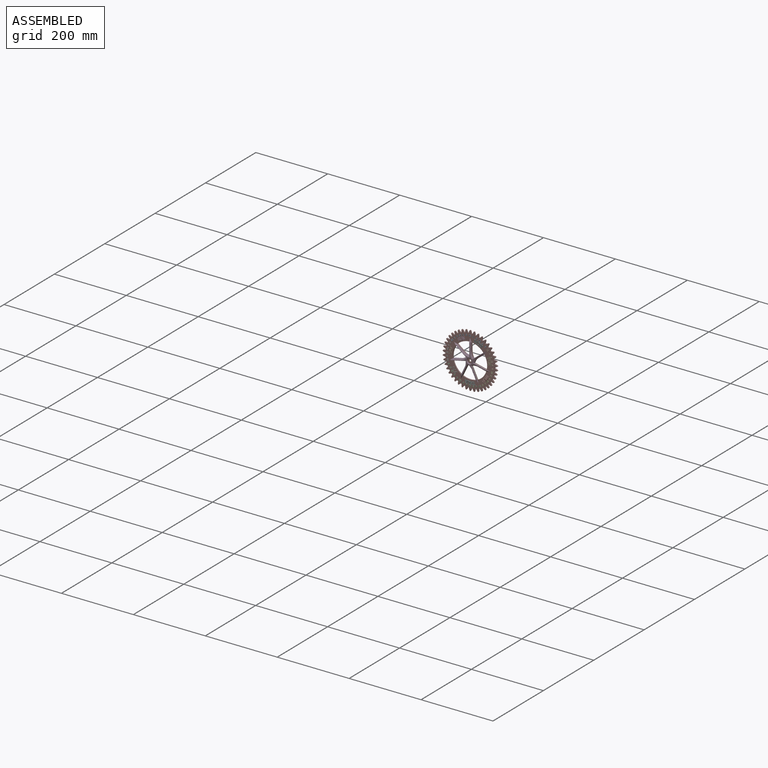
[diagram: assembled view]
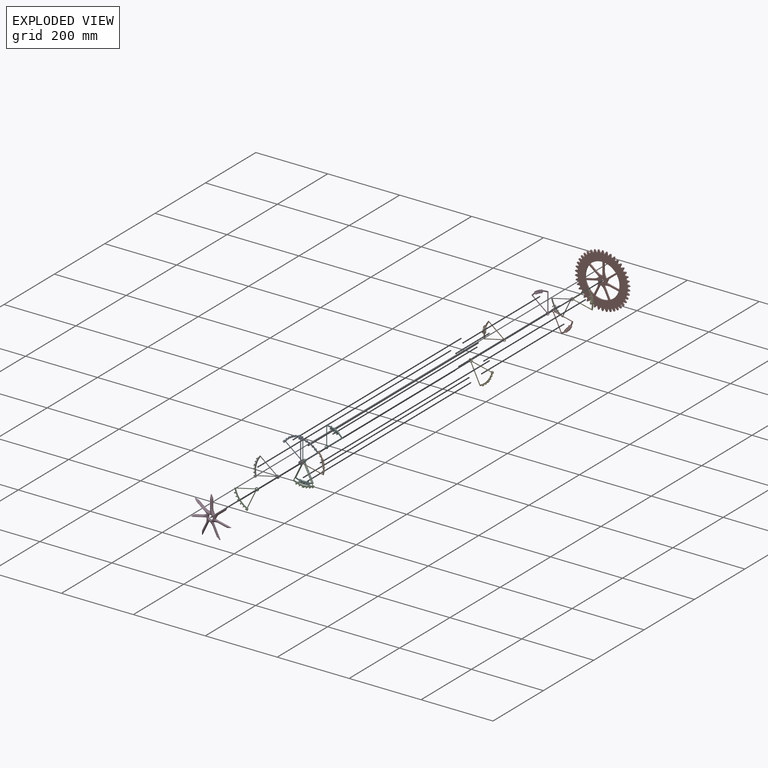
[diagram: exploded view]
GUIDED TOUR — MATED ASSEMBLY (Onshape document fc287e7eb0d89cf770b1b55a, AutoMate assembly fc287e7eb0d89cf770b1b55a_567d57d1a9eed2871b4e9d9c_314c2191165127549fa9cd8b_default)

This assembly has 16 components, labeled P0..P15 below (a component is one placed occurrence of a part; the same part can appear more than once), held together by 45 mates. A mate is a constraint between two components; its type names the relative motion it leaves free:
  CYLINDRICAL — leaves both rotation about and translation along the listed axis free,
  PLANAR — leaves sliding in the plane through the listed point (normal = the listed direction) and rotation about that normal free.
Axis/direction vectors are unit vectors and 'through' points are millimeter coordinates, both in the assembly's world frame.

MATES
  1. PLANAR "Planar 6": P8 <-> P15, direction (-0.623, 0.000, -0.782) through (-39.82, -40.15, 39.80) mm
  2. PLANAR "Planar 19": P7 <-> P15, direction (0.000, 1.000, 0.000) through (16.37, -39.35, -5.75) mm
  3. PLANAR "Planar 7": P4 <-> P15, direction (0.000, 1.000, 0.000) through (18.33, -39.35, -6.20) mm
  4. PLANAR "Planar 22": P5 <-> P15, direction (0.901, 0.000, 0.434) through (-1.00, -40.15, -8.11) mm
  5. PLANAR "Planar 1": P15 <-> P0, direction (0.000, 1.000, 0.000) through (-14.31, -39.35, 19.53) mm
  6. PLANAR "Planar 15": P13 <-> P15, direction (0.000, 1.000, 0.000) through (3.28, -39.35, 70.51) mm
  7. PLANAR "Planar 11": P2 <-> P15, direction (0.000, 1.000, 0.000) through (-46.60, -39.35, -6.62) mm
  8. PLANAR "Planar 25": P9 <-> P15, direction (0.000, 1.000, 0.000) through (-52.44, -39.35, 28.79) mm
  9. PLANAR "Planar 5": P8 <-> P15, direction (0.000, 1.000, 0.000) through (-32.58, -39.35, 56.78) mm
  10. CYLINDRICAL "Cylindrical 3": P8 <-> P15, axis (0.000, -1.000, 0.000) through (-14.31, -40.15, 19.48) mm
  11. CYLINDRICAL "Cylindrical 10": P7 <-> P15, axis (0.000, -1.000, 0.000) through (-14.31, -40.15, 19.48) mm
  12. PLANAR "Planar 28": P11 <-> P15, direction (-1.000, 0.000, 0.000) through (-14.31, -40.15, 48.48) mm
  13. PLANAR "Planar 29": P3 <-> P15, direction (0.000, 1.000, 0.000) through (-24.24, -39.35, 27.39) mm
  14. PLANAR "Planar 10": P6 <-> P15, direction (0.223, 0.000, -0.975) through (-46.10, -40.15, 12.20) mm
  15. PLANAR "Planar 16": P13 <-> P15, direction (-1.000, 0.000, 0.000) through (-14.31, -40.15, 50.12) mm
  16. CYLINDRICAL "Cylindrical 11": P5 <-> P15, axis (0.000, -1.000, 0.000) through (-14.31, -40.94, 19.48) mm
  17. PLANAR "Planar 17": P12 <-> P15, direction (0.000, 1.000, 0.000) through (24.53, -39.35, 27.69) mm
  18. PLANAR "Planar 26": P9 <-> P15, direction (0.223, 0.000, -0.975) through (-44.17, -40.15, 12.64) mm
  19. CYLINDRICAL "Cylindrical 14": P11 <-> P15, axis (0.000, -1.000, 0.000) through (-14.31, -40.15, 19.48) mm
  20. PLANAR "Planar 2": P0 <-> P15, direction (-1.000, 0.000, 0.000) through (-14.31, -40.15, 52.10) mm
  21. PLANAR "Planar 13": P10 <-> P15, direction (0.000, 1.000, 0.000) through (-14.04, -39.35, -22.05) mm
  22. PLANAR "Planar 14": P10 <-> P15, direction (0.901, 0.000, -0.433) through (-28.44, -40.15, -9.92) mm
  23. PLANAR "Planar 24": P14 <-> P15, direction (0.901, 0.000, -0.433) through (-27.58, -40.15, -8.13) mm
  24. PLANAR "Planar 27": P11 <-> P15, direction (0.000, 1.000, 0.000) through (-30.98, -39.35, 55.54) mm
  25. PLANAR "Planar 30": P3 <-> P15, direction (-0.624, 0.000, 0.782) through (9.05, -45.70, 38.12) mm
  26. PLANAR "Planar 12": P2 <-> P15, direction (0.223, 0.000, -0.975) through (-46.11, -39.35, 12.20) mm
  27. PLANAR "Planar 21": P5 <-> P15, direction (0.000, 1.000, 0.000) through (-8.38, -39.35, -34.19) mm
  28. CYLINDRICAL "Cylindrical 6": P2 <-> P15, axis (0.000, -1.000, 0.000) through (-14.31, -40.15, 19.48) mm
  29. CYLINDRICAL "Cylindrical 5": P6 <-> P15, axis (0.000, -1.000, 0.000) through (-14.31, -40.15, 19.48) mm
  30. PLANAR "Planar 18": P12 <-> P15, direction (-0.624, 0.000, 0.782) through (9.64, -40.15, 38.59) mm
  31. PLANAR "Planar 3": P1 <-> P15, direction (0.000, 1.000, 0.000) through (26.12, -39.35, 28.97) mm
  32. CYLINDRICAL "Cylindrical 7": P10 <-> P15, axis (0.000, -1.000, 0.000) through (-14.31, -40.94, 19.48) mm
  33. CYLINDRICAL "Cylindrical 1": P0 <-> P15, axis (0.000, 1.000, 0.000) through (-14.31, -39.35, 19.48) mm
  34. CYLINDRICAL "Cylindrical 9": P12 <-> P15, axis (0.000, -1.000, 0.000) through (-14.31, -40.15, 19.48) mm
  35. PLANAR "Planar 31": P3 <-> P15, direction (-0.623, 0.000, -0.782) through (-40.56, -42.46, 40.38) mm
  36. CYLINDRICAL "Cylindrical 2": P1 <-> P15, axis (0.000, -1.000, 0.000) through (-14.31, -40.15, 19.48) mm
  37. CYLINDRICAL "Cylindrical 4": P4 <-> P15, axis (0.000, -1.000, 0.000) through (-14.31, -40.15, 19.48) mm
  38. PLANAR "Planar 4": P1 <-> P15, direction (-0.624, 0.000, 0.782) through (11.19, -40.15, 39.82) mm
  39. PLANAR "Planar 20": P7 <-> P15, direction (0.222, 0.000, 0.975) through (15.57, -40.15, 12.68) mm
  40. PLANAR "Planar 23": P14 <-> P15, direction (0.000, 1.000, 0.000) through (-45.27, -39.35, -4.39) mm
  41. CYLINDRICAL "Cylindrical 12": P14 <-> P15, axis (0.000, -1.000, 0.000) through (-14.31, -40.15, 19.48) mm
  42. CYLINDRICAL "Cylindrical 8": P13 <-> P15, axis (0.000, -1.000, 0.000) through (-14.31, -40.94, 19.48) mm
  43. PLANAR "Planar 9": P6 <-> P15, direction (0.000, 1.000, 0.000) through (-54.86, -39.35, 28.45) mm
  44. CYLINDRICAL "Cylindrical 13": P9 <-> P15, axis (0.000, -1.000, 0.000) through (-14.31, -40.15, 19.48) mm
  45. PLANAR "Planar 8": P4 <-> P15, direction (0.901, 0.000, 0.434) through (-0.14, -40.15, -9.90) mm

ASSEMBLY ORDER
  1. P4 — the base component [order verified]
  2. P0 [order verified]
  3. P1 [order verified]
  4. P2 [order verified]
  5. P6 [order verified]
  6. P8 [order verified]
  7. P10 [order verified]
  8. P5 [order verified]
  9. P9 [order verified]
  10. P11 [order verified]
  11. P13 [order verified]
  12. P14 [order verified]
  13. P15 [order verified]
  14. P7 [order verified]
  15. P12 [order verified]
  16. P3 [order verified]
(P0, P1, P2, P3, P5, P6, P8, P10, P13, P15 verified with a relaxed clearance tolerance: the source model stores slight part interference there.)
Order-tag legend:
  [order verified] — this step's position reverses a verified removal order: the component was checked to insert without passing through the ones already placed.

Of the 16 components, 15 carry the full construction recipe — the FeatureScript program that regenerates the part's solid from scratch; the rest are supplied as boundary geometry only.
Because this assembly has more than 12 components, the tour below covers the 12 most significant ones individually (every recipe-attached component first, then the largest by part volume), in assembly order; the remaining 4 are summarized together in a grouped section at the end.
Each toured component is shown spotlighted twice — in the assembled view, then in the exploded view, where a leader line traces a displaced component back to its assembled socket (saturated green if recipe-attached, orange if geometry-only; every other component desaturated gray) — followed by its recipe or geometry summary and the mates that hold it.
NOTE — document 2 of 2 of this assembly tour. The two overview renders and the header above are repeated from document 1; the component sections below continue where the previous document stopped.
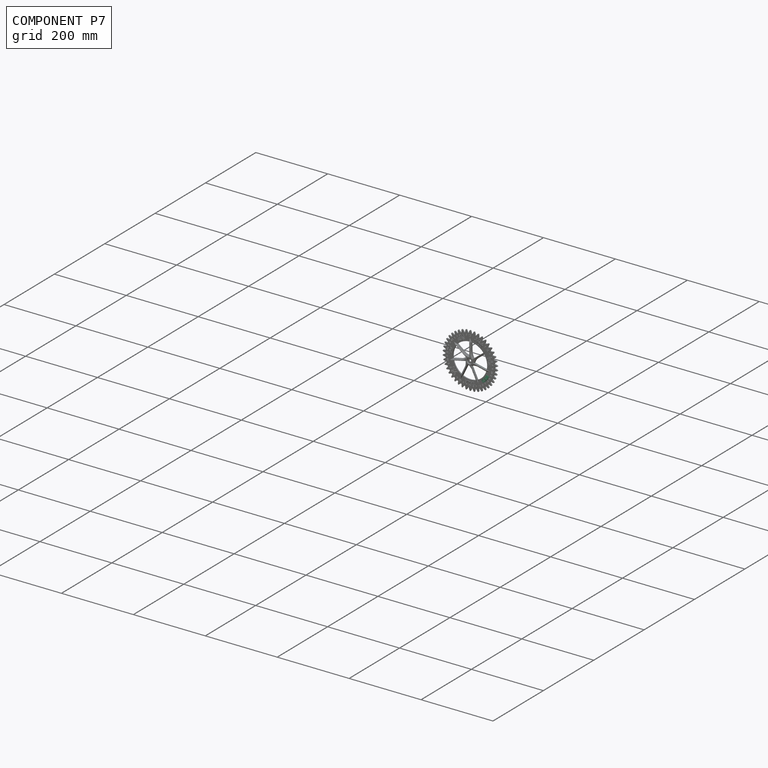
[diagram: component P7 — assembled]
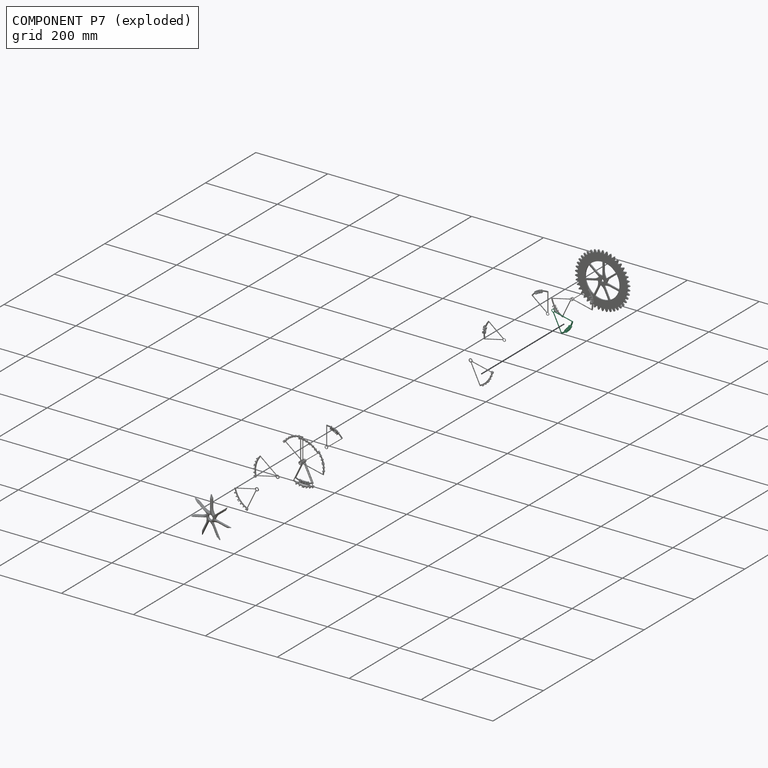
[diagram: component P7 — exploded]
COMPONENT P7 — recipe-attached (CADFS 00778296, mesh-verified: the recipe's output STEP matches this component's geometry to below the mesh-comparison resolution (tessellation chordal tolerance ~0.122 mm)).
Held by: PLANAR mate "Planar 19" to P15; CYLINDRICAL mate "Cylindrical 10" to P15; PLANAR mate "Planar 20" to P15.
Construction recipe (FeatureScript — the CAD program that rebuilds this solid; sketch coordinates are in the units given by the * unit suffixes, e.g. mm):

FeatureScript 1511;
import(path : "onshape/std/geometry.fs", version : "1511.0");
import(path : "onshape/std/common.fs", version : "1511.0");
const mm = millimeter;
const VERTEX = EntityType.VERTEX;
const EDGE = EntityType.EDGE;
const FACE = EntityType.FACE;
const BODY = EntityType.BODY;
function v(x, y){return vector(x, y);}
function OD(order){return orderDisambiguation(order);}
function OSD(set){return originalSetDisambiguation(set);}
function TD(topology){return topologyDisambiguation(topology);}
function TDD(query){return trueDependencyDisambiguation(query);}
function sQuery(a, b, c) {return sketchEntityQuery(a, b, c);}

annotation { "Feature Type Name" : "Feature", "Feature Type Description" : "" }
export const myFeature = defineFeature(function(context is Context, id is Id, definition is map)
    precondition{}
    {
        {
            var Q0;
            Q0=qCreatedBy(makeId("Front.planeOp"),FACE);
            var sketch = newSketch(context, id + "F0", { "sketchPlane" : qUnion([Q0])});
            skCircle(sketch, "E0", {"center": v(0, 0) * mm, "radius": 59.18 * mm, "construction": true});
            skCircle(sketch, "E1", {"center": v(0, 0) * mm, "radius": 50.8 * mm, "construction": true});
            skLineSegment(sketch, "E2", {"start": v(0, 0) * mm, "end": v(0, 59.18) * mm, "construction": true});
            skLineSegment(sketch, "E3", {"start": v(0, 0) * mm, "end": v(25.7, -53.3) * mm, "construction": true});
            skLineSegment(sketch, "E4", {"start": v(0, 0) * mm, "end": v(7.64, -58.69) * mm, "construction": true});
            skLineSegment(sketch, "E5", {"start": v(0, 0) * mm, "end": v(-1.12, -59.17) * mm, "construction": true});
            skLineSegment(sketch, "E6", {"start": v(0, 0) * mm, "end": v(-9.09, -58.48) * mm, "construction": true});
            skText(sketch, "E7", { "text": "W", "fontName": "RobotoSlab-Regular.ttf"});
            skText(sketch, "E8", { "text": "E", "fontName": "RobotoSlab-Regular.ttf"});
            skText(sketch, "E9", { "text": "D", "fontName": "RobotoSlab-Regular.ttf"});
            skLineSegment(sketch, "E10", {"start": v(0, 0) * mm, "end": v(13, -57.99) * mm, "construction": true});
            skLineSegment(sketch, "E11", {"start": v(0, 0) * mm, "end": v(-12.92, -57.89) * mm, "construction": true});
            skLineSegment(sketch, "E12", {"start": v(0, 0) * mm, "end": v(-25.65, -53.34) * mm, "construction": true});
            const initialGuessF0  = {"E7": [0.01198, -0.05012, -0.99163, -0.1291, 0.00794], "E8": [0.0026, -0.0513, -0.99982, 0.0189, 0.00794], "E9": [-0.00404, -0.05123, -0.98814, 0.15355, 0.00794]};
            skSetInitialGuess(sketch, initialGuessF0);
            skSolve(sketch);
        }
        {
            var Q0;
            Q0=qSketchRegion(id+"F0",true);
            extrude(context, id + "F1", {"entities" : qUnion([Q0]), "depth" : 4.76 * mm, "offsetDistance" : 25.4 * mm});
        }
        {
            var Q0;
            Q0=qCreatedBy(makeId("Front.planeOp"),FACE);
            var sketch = newSketch(context, id + "F2", { "sketchPlane" : qUnion([Q0])});
            skCircle(sketch, "E13", {"center": v(0, 0) * mm, "radius": 4.13 * mm, "construction": true});
            skCircle(sketch, "E14", {"center": v(0, 0) * mm, "radius": 53.98 * mm, "construction": true});
            skCircle(sketch, "E15", {"center": v(0, 0) * mm, "radius": 57.15 * mm, "construction": true});
            skLineSegment(sketch, "E16", {"start": v(0, 0) * mm, "end": v(0, 57.15) * mm, "construction": true});
            skLineSegment(sketch, "E17", {"start": v(0, 0) * mm, "end": v(24.82, -51.48) * mm, "construction": true});
            skLineSegment(sketch, "E18", {"start": v(0, 0) * mm, "end": v(-23.39, -48.64) * mm, "construction": true});
            skLineSegment(sketch, "E19", {"start": v(22, -49.29) * mm, "end": v(0.22, -4.12) * mm, "construction": true});
            skLineSegment(sketch, "E20", {"start": v(-26.19, -50.8) * mm, "end": v(-3.08, -2.75) * mm, "construction": true});
            skLineSegment(sketch, "E21", {"start": v(-3.08, -2.75) * mm, "end": v(-26.19, -50.8) * mm});
            skLineSegment(sketch, "E22", {"start": v(-23.39, -48.64) * mm, "end": v(-1.79, -3.72) * mm});
            skLineSegment(sketch, "E23", {"start": v(24.82, -51.48) * mm, "end": v(1.8, -3.72) * mm});
            skLineSegment(sketch, "E24", {"start": v(22, -49.29) * mm, "end": v(0.22, -4.12) * mm});
            skCircle(sketch, "E25", {"center": v(0, 0) * mm, "radius": 4.13 * mm});
            skArc(sketch, "E26", {"start": v(-23.39, -48.64) * mm, "mid": v(-0.77, -53.97) * mm, "end": v(22, -49.29) * mm});
            skArc(sketch, "E27", {"start": v(-26.19, -50.8) * mm, "mid": v(-0.76, -57.2) * mm, "end": v(24.82, -51.48) * mm});
            skSolve(sketch);
        }
        {
            var Q0;
            {var subQ0=sQuery(id+"F2.wireOp",EDGE,"E25");var subQ1=makeQuery(id+"F2.imprint","INTERSECT",VERTEX,{"derivedFrom":[sQuery(id+"F2.wireOp",EDGE,"E21"),subQ0]});Q0=makeQuery(id+"F2.imprint","IMPRINT",FACE,{"disambiguationData":[TD([[makeQuery(id+"F2.imprint","IMPRINT",EDGE,{"disambiguationData":[TD([[subQ1,-1.0]])],"derivedFrom":subQ0}),1.0]])]});}
            var Q1;
            {var subQ3=sQuery(id+"F2.wireOp",EDGE,"E21");Q1=makeQuery(id+"F2.imprint","IMPRINT",FACE,{"disambiguationData":[TD([[makeQuery(id+"F2.imprint","IMPRINT",EDGE,{"derivedFrom":subQ3}),1.0]])]});}
            extrude(context, id + "F3", {"entities" : qUnion([Q0, Q1]), "operationType" : NewBodyOperationType.ADD, "depth" : 1.59 * mm, "offsetDistance" : 25.4 * mm});
        }
        {
            var Q0;
            {var subQ0=sQuery(id+"F2.wireOp",EDGE,"E25");var subQ1=sQuery(id+"F2.wireOp",EDGE,"E21");var subQ2=sQuery(id+"F2.wireOp",EDGE,"E23");var subQ3=sQuery(id+"F2.wireOp",EDGE,"E22");var subQ4=sQuery(id+"F2.wireOp",EDGE,"E24");var subQ5=sQuery(id+"F2.wireOp",EDGE,"E26");var subQ6=sQuery(id+"F2.wireOp",EDGE,"E27");Q0=makeQuery(id+"F3.boolean.opBoolean","SPLIT",FACE,{"disambiguationData":[TD([makeQuery(id+"F1.opExtrude","SWEPT_FACE",FACE,{"disambiguationData":[OSD([sQuery(id+"F0.wireOp",EDGE,"E7.sketch_text.stroke-25")])]})])],"derivedFrom":makeQuery(id+"F3.opExtrude","CAP_FACE",FACE,{"disambiguationData":[OSD([subQ1,subQ3,subQ2,subQ4,subQ0,subQ5,subQ6])],"isStart":false})});}
            var sketch = newSketch(context, id + "F4", { "sketchPlane" : qUnion([Q0])});
            skPoint(sketch, "E28", {"position": v(0, 0) * mm});
            skSolve(sketch);
        }
        {
            var Q0;
            Q0=sQuery(id+"F4.wireOp",VERTEX,"E28");
            var Q1;
            Q1=makeQuery(id+"F1.opExtrude","SWEPT_BODY",BODY,{"disambiguationData":[OSD([sQuery(id+"F0.wireOp",EDGE,"E7.sketch_text.stroke-0"),sQuery(id+"F0.wireOp",EDGE,"E7.sketch_text.stroke-1"),sQuery(id+"F0.wireOp",EDGE,"E7.sketch_text.stroke-2"),sQuery(id+"F0.wireOp",EDGE,"E7.sketch_text.stroke-3"),sQuery(id+"F0.wireOp",EDGE,"E7.sketch_text.stroke-4"),sQuery(id+"F0.wireOp",EDGE,"E7.sketch_text.stroke-5"),sQuery(id+"F0.wireOp",EDGE,"E7.sketch_text.stroke-6"),sQuery(id+"F0.wireOp",EDGE,"E7.sketch_text.stroke-7"),sQuery(id+"F0.wireOp",EDGE,"E7.sketch_text.stroke-8"),sQuery(id+"F0.wireOp",EDGE,"E7.sketch_text.stroke-9"),sQuery(id+"F0.wireOp",EDGE,"E7.sketch_text.stroke-10"),sQuery(id+"F0.wireOp",EDGE,"E7.sketch_text.stroke-11"),sQuery(id+"F0.wireOp",EDGE,"E7.sketch_text.stroke-12"),sQuery(id+"F0.wireOp",EDGE,"E7.sketch_text.stroke-13"),sQuery(id+"F0.wireOp",EDGE,"E7.sketch_text.stroke-14"),sQuery(id+"F0.wireOp",EDGE,"E7.sketch_text.stroke-15"),sQuery(id+"F0.wireOp",EDGE,"E7.sketch_text.stroke-16"),sQuery(id+"F0.wireOp",EDGE,"E7.sketch_text.stroke-17"),sQuery(id+"F0.wireOp",EDGE,"E7.sketch_text.stroke-18"),sQuery(id+"F0.wireOp",EDGE,"E7.sketch_text.stroke-19"),sQuery(id+"F0.wireOp",EDGE,"E7.sketch_text.stroke-20"),sQuery(id+"F0.wireOp",EDGE,"E7.sketch_text.stroke-21"),sQuery(id+"F0.wireOp",EDGE,"E7.sketch_text.stroke-22"),sQuery(id+"F0.wireOp",EDGE,"E7.sketch_text.stroke-23"),sQuery(id+"F0.wireOp",EDGE,"E7.sketch_text.stroke-24"),sQuery(id+"F0.wireOp",EDGE,"E7.sketch_text.stroke-25"),sQuery(id+"F0.wireOp",EDGE,"E7.sketch_text.stroke-26"),sQuery(id+"F0.wireOp",EDGE,"E7.sketch_text.stroke-27"),sQuery(id+"F0.wireOp",EDGE,"E7.sketch_text.stroke-28"),sQuery(id+"F0.wireOp",EDGE,"E7.sketch_text.stroke-29")])]});
            hole(context, id + "F5", {"style" : HoleStyle.SIMPLE, "endStyle" : HoleEndStyle.THROUGH, "holeDiameter" : 6.35 * mm, "majorDiameter" : 6.35 * mm, "isTappedThrough" : true, "tappedDepth" : 12.7 * mm, "tapClearance" : 3, "locations" : qUnion([Q0]), "scope" : qUnion([Q1])});
        }
    });
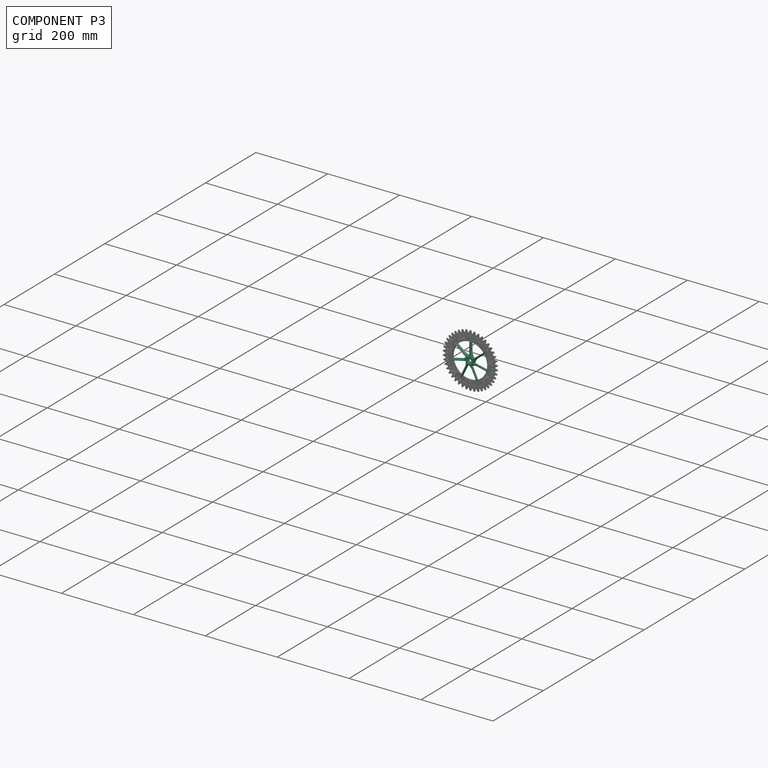
[diagram: component P3 — assembled]
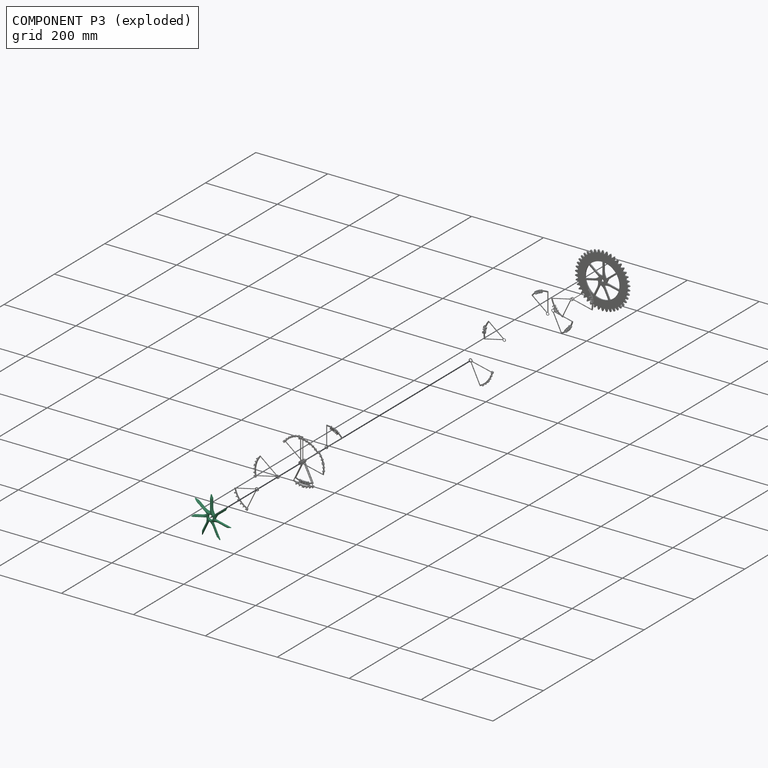
[diagram: component P3 — exploded]
COMPONENT P3 — recipe-attached (CADFS 00778291, mesh-verified: the recipe's output STEP matches this component's geometry to below the mesh-comparison resolution (tessellation chordal tolerance ~0.234 mm)).
Held by: PLANAR mate "Planar 29" to P15; PLANAR mate "Planar 30" to P15; PLANAR mate "Planar 31" to P15.
Construction recipe (FeatureScript — the CAD program that rebuilds this solid; sketch coordinates are in the units given by the * unit suffixes, e.g. mm):

FeatureScript 1511;
import(path : "onshape/std/geometry.fs", version : "1511.0");
import(path : "onshape/std/common.fs", version : "1511.0");
const mm = millimeter;
const VERTEX = EntityType.VERTEX;
const EDGE = EntityType.EDGE;
const FACE = EntityType.FACE;
const BODY = EntityType.BODY;
function v(x, y){return vector(x, y);}
function OD(order){return orderDisambiguation(order);}
function OSD(set){return originalSetDisambiguation(set);}
function TD(topology){return topologyDisambiguation(topology);}
function TDD(query){return trueDependencyDisambiguation(query);}
function sQuery(a, b, c) {return sketchEntityQuery(a, b, c);}

annotation { "Feature Type Name" : "Feature", "Feature Type Description" : "" }
export const myFeature = defineFeature(function(context is Context, id is Id, definition is map)
    precondition{}
    {
        {
            var Q0;
            Q0=qCreatedBy(makeId("Front.planeOp"),FACE);
            var sketch = newSketch(context, id + "F0", { "sketchPlane" : qUnion([Q0])});
            skLineSegment(sketch, "E0", {"start": v(-0.02, 0.17) * mm, "end": v(-0.02, 65.94) * mm, "construction": true});
            skLineSegment(sketch, "E1", {"start": v(-0.02, 0.17) * mm, "end": v(62.98, 50.43) * mm, "construction": true});
            skLineSegment(sketch, "E2", {"start": v(-0.02, 0.17) * mm, "end": v(85.47, -19.31) * mm, "construction": true});
            skLineSegment(sketch, "E3", {"start": v(-0.02, 0.17) * mm, "end": v(34.2, -70.81) * mm, "construction": true});
            skLineSegment(sketch, "E4", {"start": v(-0.02, 0.17) * mm, "end": v(-35.22, -73.03) * mm, "construction": true});
            skLineSegment(sketch, "E5", {"start": v(-0.02, 0.17) * mm, "end": v(-77.45, -17.56) * mm, "construction": true});
            skLineSegment(sketch, "E6", {"start": v(-0.02, 0.17) * mm, "end": v(-64.01, 51.1) * mm, "construction": true});
            skCircle(sketch, "E7", {"center": v(-0.02, 0.17) * mm, "radius": 38.1 * mm, "construction": true});
            skCircle(sketch, "E8", {"center": v(-0.02, 0.17) * mm, "radius": 57.15 * mm, "construction": true});
            skCircle(sketch, "E9", {"center": v(-0.02, 38.27) * mm, "radius": 25.4 * mm, "construction": true});
            skCircle(sketch, "E10", {"center": v(29.76, 23.93) * mm, "radius": 25.4 * mm, "construction": true});
            skCircle(sketch, "E11", {"center": v(37.13, -8.3) * mm, "radius": 25.4 * mm, "construction": true});
            skCircle(sketch, "E12", {"center": v(16.52, -34.15) * mm, "radius": 25.4 * mm, "construction": true});
            skCircle(sketch, "E13", {"center": v(-16.53, -34.17) * mm, "radius": 25.4 * mm, "construction": true});
            skCircle(sketch, "E14", {"center": v(-37.16, -8.33) * mm, "radius": 25.4 * mm, "construction": true});
            skCircle(sketch, "E15", {"center": v(-29.83, 23.9) * mm, "radius": 25.4 * mm, "construction": true});
            skCircle(sketch, "E16", {"center": v(-0.02, 0.17) * mm, "radius": 9.53 * mm, "construction": true});
            skCircle(sketch, "E17", {"center": v(-0.02, 0.17) * mm, "radius": 27.33 * mm, "construction": true});
            skCircle(sketch, "E18", {"center": v(-0.02, 0.17) * mm, "radius": 47.78 * mm, "construction": true});
            skLineSegment(sketch, "E19", {"start": v(4.36, 55.4) * mm, "end": v(4.36, 8.63) * mm, "construction": true});
            skLineSegment(sketch, "E20", {"start": v(44.67, 30.22) * mm, "end": v(9.32, 2.02) * mm, "construction": true});
            skLineSegment(sketch, "E21", {"start": v(51.72, -16.12) * mm, "end": v(5.86, -5.67) * mm, "construction": true});
            skLineSegment(sketch, "E22", {"start": v(19.17, -49.73) * mm, "end": v(-0.3, -9.35) * mm, "construction": true});
            skLineSegment(sketch, "E23", {"start": v(-26.38, -44.54) * mm, "end": v(-7.64, -5.55) * mm, "construction": true});
            skLineSegment(sketch, "E24", {"start": v(-37.16, 34.7) * mm, "end": v(-4.4, 8.63) * mm, "construction": true});
            skLineSegment(sketch, "E25", {"start": v(-52.86, -7.43) * mm, "end": v(-9.24, 2.56) * mm, "construction": true});
            skLineSegment(sketch, "E26", {"start": v(-0.02, 57.32) * mm, "end": v(-0.02, 9.7) * mm});
            skArc(sketch, "E27", {"start": v(7.42, 6.11) * mm, "mid": v(4.24, 9.02) * mm, "end": v(-0.02, 9.7) * mm});
            skLineSegment(sketch, "E28", {"start": v(7.42, 6.11) * mm, "end": v(10.26, 8.37) * mm});
            skArc(sketch, "E29", {"start": v(4.56, 27.12) * mm, "mid": v(5.72, 17.23) * mm, "end": v(10.26, 8.37) * mm});
            skLineSegment(sketch, "E30", {"start": v(4.56, 27.12) * mm, "end": v(4.56, 47.73) * mm});
            skLineSegment(sketch, "E31", {"start": v(4.56, 47.73) * mm, "end": v(-0.02, 57.32) * mm});
            skLineSegment(sketch, "E32", {"start": v(44.65, 35.81) * mm, "end": v(7.42, 6.11) * mm});
            skArc(sketch, "E33", {"start": v(9.26, -1.95) * mm, "mid": v(9.25, 2.3) * mm, "end": v(7.42, 6.11) * mm});
            skLineSegment(sketch, "E34", {"start": v(9.26, -1.95) * mm, "end": v(12.36, -2.65) * mm});
            skArc(sketch, "E35", {"start": v(23.9, 13.4) * mm, "mid": v(16.63, 6.45) * mm, "end": v(12.36, -2.65) * mm});
            skLineSegment(sketch, "E36", {"start": v(23.9, 13.4) * mm, "end": v(40.02, 26.25) * mm});
            skLineSegment(sketch, "E37", {"start": v(40.02, 26.25) * mm, "end": v(44.65, 35.81) * mm});
            skLineSegment(sketch, "E38", {"start": v(55.7, -12.53) * mm, "end": v(9.26, -1.95) * mm});
            skArc(sketch, "E39", {"start": v(4.11, -8.4) * mm, "mid": v(7.49, -5.81) * mm, "end": v(9.26, -1.95) * mm});
            skLineSegment(sketch, "E40", {"start": v(4.11, -8.4) * mm, "end": v(5.5, -11.27) * mm});
            skArc(sketch, "E41", {"start": v(25.23, -10.29) * mm, "mid": v(15.26, -8.79) * mm, "end": v(5.5, -11.27) * mm});
            skLineSegment(sketch, "E42", {"start": v(25.23, -10.29) * mm, "end": v(45.33, -14.87) * mm});
            skLineSegment(sketch, "E43", {"start": v(45.33, -14.87) * mm, "end": v(55.7, -12.53) * mm});
            skLineSegment(sketch, "E44", {"start": v(24.8, -51.3) * mm, "end": v(4.11, -8.4) * mm});
            skArc(sketch, "E45", {"start": v(-4.15, -8.41) * mm, "mid": v(-0.02, -9.35) * mm, "end": v(4.11, -8.4) * mm});
            skLineSegment(sketch, "E46", {"start": v(-4.15, -8.41) * mm, "end": v(-5.53, -11.27) * mm});
            skArc(sketch, "E47", {"start": v(7.55, -26.1) * mm, "mid": v(2.57, -17.3) * mm, "end": v(-5.53, -11.27) * mm});
            skLineSegment(sketch, "E48", {"start": v(7.55, -26.1) * mm, "end": v(16.5, -44.66) * mm});
            skLineSegment(sketch, "E49", {"start": v(16.5, -44.66) * mm, "end": v(24.8, -51.3) * mm});
            skLineSegment(sketch, "E50", {"start": v(-24.79, -51.33) * mm, "end": v(-4.15, -8.41) * mm});
            skArc(sketch, "E51", {"start": v(-9.3, -1.95) * mm, "mid": v(-7.46, -5.77) * mm, "end": v(-4.15, -8.41) * mm});
            skLineSegment(sketch, "E52", {"start": v(-9.3, -1.95) * mm, "end": v(-12.4, -2.66) * mm});
            skArc(sketch, "E53", {"start": v(-15.83, -22.13) * mm, "mid": v(-12.19, -12.73) * mm, "end": v(-12.4, -2.66) * mm});
            skLineSegment(sketch, "E54", {"start": v(-15.83, -22.13) * mm, "end": v(-24.76, -40.7) * mm});
            skLineSegment(sketch, "E55", {"start": v(-24.76, -40.7) * mm, "end": v(-24.79, -51.33) * mm});
            skLineSegment(sketch, "E56", {"start": v(-55.73, -12.59) * mm, "end": v(-9.3, -1.95) * mm});
            skArc(sketch, "E57", {"start": v(-7.47, 6.1) * mm, "mid": v(-9.3, 2.28) * mm, "end": v(-9.3, -1.95) * mm});
            skLineSegment(sketch, "E58", {"start": v(-7.47, 6.1) * mm, "end": v(-9.96, 8.08) * mm});
            skArc(sketch, "E59", {"start": v(-27.31, -1.38) * mm, "mid": v(-17.73, 1.68) * mm, "end": v(-9.96, 8.08) * mm});
            skLineSegment(sketch, "E60", {"start": v(-27.31, -1.38) * mm, "end": v(-47.4, -5.98) * mm});
            skLineSegment(sketch, "E61", {"start": v(-47.4, -5.98) * mm, "end": v(-55.73, -12.59) * mm});
            skLineSegment(sketch, "E62", {"start": v(-44.74, 35.76) * mm, "end": v(-7.47, 6.1) * mm});
            skArc(sketch, "E63", {"start": v(-0.02, 9.7) * mm, "mid": v(-4.16, 8.75) * mm, "end": v(-7.47, 6.1) * mm});
            skLineSegment(sketch, "E64", {"start": v(-0.02, 9.7) * mm, "end": v(-0.02, 12.87) * mm});
            skArc(sketch, "E65", {"start": v(-18.77, 20.06) * mm, "mid": v(-10.07, 14.7) * mm, "end": v(-0.02, 12.87) * mm});
            skLineSegment(sketch, "E66", {"start": v(-18.77, 20.06) * mm, "end": v(-34.86, 32.87) * mm});
            skLineSegment(sketch, "E67", {"start": v(-34.86, 32.87) * mm, "end": v(-44.74, 35.76) * mm});
            skCircle(sketch, "E68", {"center": v(0, 0) * mm, "radius": 9.97 * mm});
            skCircle(sketch, "E69", {"center": v(0, 0) * mm, "radius": 6.63 * mm});
            skSolve(sketch);
        }
        {
            var Q0;
            {var subQ0=sQuery(id+"F0.wireOp",EDGE,"E65");Q0=makeQuery(id+"F0.imprint","IMPRINT",FACE,{"disambiguationData":[TD([[makeQuery(id+"F0.imprint","IMPRINT",EDGE,{"derivedFrom":subQ0}),-1.0]])]});}
            var Q1;
            {var subQ1=sQuery(id+"F0.wireOp",EDGE,"E26");Q1=makeQuery(id+"F0.imprint","IMPRINT",FACE,{"disambiguationData":[TD([[makeQuery(id+"F0.imprint","IMPRINT",EDGE,{"derivedFrom":subQ1}),1.0]])]});}
            var Q2;
            {var subQ0=sQuery(id+"F0.wireOp",EDGE,"E35");Q2=makeQuery(id+"F0.imprint","IMPRINT",FACE,{"disambiguationData":[TD([[makeQuery(id+"F0.imprint","IMPRINT",EDGE,{"derivedFrom":subQ0}),-1.0]])]});}
            var Q3;
            {var subQ0=sQuery(id+"F0.wireOp",EDGE,"E41");Q3=makeQuery(id+"F0.imprint","IMPRINT",FACE,{"disambiguationData":[TD([[makeQuery(id+"F0.imprint","IMPRINT",EDGE,{"derivedFrom":subQ0}),-1.0]])]});}
            var Q4;
            {var subQ0=sQuery(id+"F0.wireOp",EDGE,"E47");Q4=makeQuery(id+"F0.imprint","IMPRINT",FACE,{"disambiguationData":[TD([[makeQuery(id+"F0.imprint","IMPRINT",EDGE,{"derivedFrom":subQ0}),-1.0]])]});}
            var Q5;
            {var subQ0=sQuery(id+"F0.wireOp",EDGE,"E53");Q5=makeQuery(id+"F0.imprint","IMPRINT",FACE,{"disambiguationData":[TD([[makeQuery(id+"F0.imprint","IMPRINT",EDGE,{"derivedFrom":subQ0}),-1.0]])]});}
            var Q6;
            {var subQ0=sQuery(id+"F0.wireOp",EDGE,"E59");Q6=makeQuery(id+"F0.imprint","IMPRINT",FACE,{"disambiguationData":[TD([[makeQuery(id+"F0.imprint","IMPRINT",EDGE,{"derivedFrom":subQ0}),-1.0]])]});}
            var Q7;
            {var subQ0=sQuery(id+"F0.wireOp",EDGE,"E33");Q7=makeQuery(id+"F0.imprint","IMPRINT",FACE,{"disambiguationData":[TD([[makeQuery(id+"F0.imprint","IMPRINT",EDGE,{"derivedFrom":subQ0}),1.0]])]});}
            var Q8;
            {var subQ0=sQuery(id+"F0.wireOp",EDGE,"E33");Q8=makeQuery(id+"F0.imprint","IMPRINT",FACE,{"disambiguationData":[TD([[makeQuery(id+"F0.imprint","IMPRINT",EDGE,{"derivedFrom":subQ0}),-1.0]])]});}
            var Q9;
            {var subQ0=sQuery(id+"F0.wireOp",EDGE,"E39");Q9=makeQuery(id+"F0.imprint","IMPRINT",FACE,{"disambiguationData":[TD([[makeQuery(id+"F0.imprint","IMPRINT",EDGE,{"derivedFrom":subQ0}),-1.0]])]});}
            var Q10;
            {var subQ0=sQuery(id+"F0.wireOp",EDGE,"E45");Q10=makeQuery(id+"F0.imprint","IMPRINT",FACE,{"disambiguationData":[TD([[makeQuery(id+"F0.imprint","IMPRINT",EDGE,{"derivedFrom":subQ0}),-1.0]])]});}
            var Q11;
            {var subQ0=sQuery(id+"F0.wireOp",EDGE,"E51");Q11=makeQuery(id+"F0.imprint","IMPRINT",FACE,{"disambiguationData":[TD([[makeQuery(id+"F0.imprint","IMPRINT",EDGE,{"derivedFrom":subQ0}),-1.0]])]});}
            var Q12;
            {var subQ0=sQuery(id+"F0.wireOp",EDGE,"E57");Q12=makeQuery(id+"F0.imprint","IMPRINT",FACE,{"disambiguationData":[TD([[makeQuery(id+"F0.imprint","IMPRINT",EDGE,{"derivedFrom":subQ0}),-1.0]])]});}
            var Q13;
            {var subQ0=sQuery(id+"F0.wireOp",EDGE,"E63");Q13=makeQuery(id+"F0.imprint","IMPRINT",FACE,{"disambiguationData":[TD([[makeQuery(id+"F0.imprint","IMPRINT",EDGE,{"derivedFrom":subQ0}),-1.0]])]});}
            var Q14;
            {var subQ1=sQuery(id+"F0.wireOp",EDGE,"E27");var subQ3=sQuery(id+"F0.wireOp",EDGE,"E68");var subQ4=makeQuery(id+"F0.imprint","INTERSECT",VERTEX,{"derivedFrom":[subQ1,subQ3]});Q14=makeQuery(id+"F0.imprint","IMPRINT",FACE,{"disambiguationData":[TD([[makeQuery(id+"F0.imprint","IMPRINT",EDGE,{"disambiguationData":[TD([[subQ4,-1.0]])],"derivedFrom":subQ3}),1.0]])]});}
            var Q15;
            {var subQ1=sQuery(id+"F0.wireOp",EDGE,"E27");var subQ3=sQuery(id+"F0.wireOp",EDGE,"E68");var subQ4=makeQuery(id+"F0.imprint","INTERSECT",VERTEX,{"derivedFrom":[subQ1,subQ3]});Q15=makeQuery(id+"F0.imprint","IMPRINT",FACE,{"disambiguationData":[TD([[makeQuery(id+"F0.imprint","IMPRINT",EDGE,{"disambiguationData":[TD([[subQ4,1.0]])],"derivedFrom":subQ3}),1.0]])]});}
            extrude(context, id + "F1", {"entities" : qUnion([Q0, Q1, Q2, Q3, Q4, Q5, Q6, Q7, Q8, Q9, Q10, Q11, Q12, Q13, Q14, Q15]), "depth" : 6.35 * mm, "offsetDistance" : 25.4 * mm});
        }
        {
            var Q0;
            Q0=makeQuery(id+"F1.opExtrude","CAP_EDGE",EDGE,{"disambiguationData":[OSD([sQuery(id+"F0.wireOp",EDGE,"E66")])],"isStart":false});
            var Q1;
            Q1=makeQuery(id+"F1.opExtrude","CAP_EDGE",EDGE,{"disambiguationData":[OSD([sQuery(id+"F0.wireOp",EDGE,"E65")])],"isStart":false});
            var Q2;
            Q2=makeQuery(id+"F1.opExtrude","CAP_EDGE",EDGE,{"disambiguationData":[OSD([sQuery(id+"F0.wireOp",EDGE,"E30")])],"isStart":false});
            var Q3;
            Q3=makeQuery(id+"F1.opExtrude","CAP_EDGE",EDGE,{"disambiguationData":[OSD([sQuery(id+"F0.wireOp",EDGE,"E29")])],"isStart":false});
            var Q4;
            Q4=makeQuery(id+"F1.opExtrude","CAP_EDGE",EDGE,{"disambiguationData":[OSD([sQuery(id+"F0.wireOp",EDGE,"E35")])],"isStart":false});
            var Q5;
            Q5=makeQuery(id+"F1.opExtrude","CAP_EDGE",EDGE,{"disambiguationData":[OSD([sQuery(id+"F0.wireOp",EDGE,"E36")])],"isStart":false});
            var Q6;
            Q6=makeQuery(id+"F1.opExtrude","CAP_EDGE",EDGE,{"disambiguationData":[OSD([sQuery(id+"F0.wireOp",EDGE,"E41")])],"isStart":false});
            var Q7;
            Q7=makeQuery(id+"F1.opExtrude","CAP_EDGE",EDGE,{"disambiguationData":[OSD([sQuery(id+"F0.wireOp",EDGE,"E42")])],"isStart":false});
            var Q8;
            Q8=makeQuery(id+"F1.opExtrude","CAP_EDGE",EDGE,{"disambiguationData":[OSD([sQuery(id+"F0.wireOp",EDGE,"E47")])],"isStart":false});
            var Q9;
            Q9=makeQuery(id+"F1.opExtrude","CAP_EDGE",EDGE,{"disambiguationData":[OSD([sQuery(id+"F0.wireOp",EDGE,"E48")])],"isStart":false});
            var Q10;
            Q10=makeQuery(id+"F1.opExtrude","CAP_EDGE",EDGE,{"disambiguationData":[OSD([sQuery(id+"F0.wireOp",EDGE,"E54")])],"isStart":false});
            var Q11;
            Q11=makeQuery(id+"F1.opExtrude","CAP_EDGE",EDGE,{"disambiguationData":[OSD([sQuery(id+"F0.wireOp",EDGE,"E53")])],"isStart":false});
            var Q12;
            Q12=makeQuery(id+"F1.opExtrude","CAP_EDGE",EDGE,{"disambiguationData":[OSD([sQuery(id+"F0.wireOp",EDGE,"E60")])],"isStart":false});
            var Q13;
            Q13=makeQuery(id+"F1.opExtrude","CAP_EDGE",EDGE,{"disambiguationData":[OSD([sQuery(id+"F0.wireOp",EDGE,"E59")])],"isStart":false});
            chamfer(context, id + "F2", {"entities" : qUnion([Q0, Q1, Q2, Q3, Q4, Q5, Q6, Q7, Q8, Q9, Q10, Q11, Q12, Q13]), "width" : 3.17 * mm, "tangentPropagation" : true});
        }
        {
            var Q0;
            Q0=makeQuery(id+"F1.opExtrude","CAP_EDGE",EDGE,{"disambiguationData":[OSD([sQuery(id+"F0.wireOp",EDGE,"E49")])],"isStart":false});
            var Q1;
            Q1=makeQuery(id+"F1.opExtrude","CAP_EDGE",EDGE,{"disambiguationData":[OSD([sQuery(id+"F0.wireOp",EDGE,"E55")])],"isStart":false});
            var Q2;
            Q2=makeQuery(id+"F1.opExtrude","CAP_EDGE",EDGE,{"disambiguationData":[OSD([sQuery(id+"F0.wireOp",EDGE,"E61")])],"isStart":false});
            var Q3;
            Q3=makeQuery(id+"F1.opExtrude","CAP_EDGE",EDGE,{"disambiguationData":[OSD([sQuery(id+"F0.wireOp",EDGE,"E67")])],"isStart":false});
            var Q4;
            Q4=makeQuery(id+"F1.opExtrude","CAP_EDGE",EDGE,{"disambiguationData":[OSD([sQuery(id+"F0.wireOp",EDGE,"E31")])],"isStart":false});
            var Q5;
            Q5=makeQuery(id+"F1.opExtrude","CAP_EDGE",EDGE,{"disambiguationData":[OSD([sQuery(id+"F0.wireOp",EDGE,"E37")])],"isStart":false});
            var Q6;
            Q6=makeQuery(id+"F1.opExtrude","CAP_EDGE",EDGE,{"disambiguationData":[OSD([sQuery(id+"F0.wireOp",EDGE,"E43")])],"isStart":false});
            chamfer(context, id + "F3", {"entities" : qUnion([Q0, Q1, Q2, Q3, Q4, Q5, Q6]), "width" : 3.17 * mm, "tangentPropagation" : true});
        }
        {
            var Q0;
            Q0=makeQuery(id+"F1.opExtrude","CAP_EDGE",EDGE,{"disambiguationData":[OSD([sQuery(id+"F0.wireOp",EDGE,"E69")])],"isStart":false});
            fillet(context, id + "F4", {"entities" : qUnion([Q0]), "radius" : 1.59 * mm, "tangentPropagation" : true, "allowEdgeOverflow" : false});
        }
    });
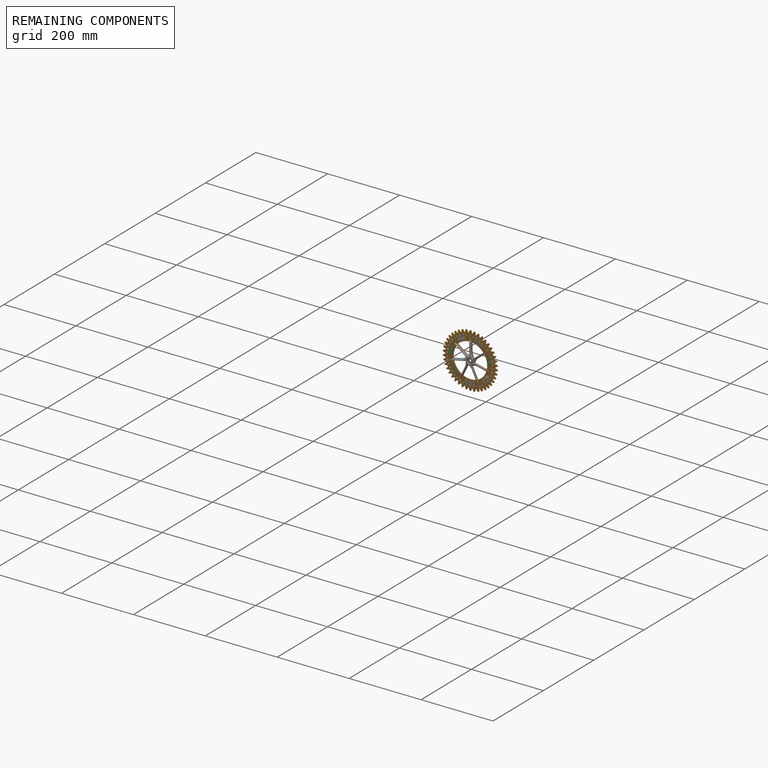
[diagram: remaining components — assembled]
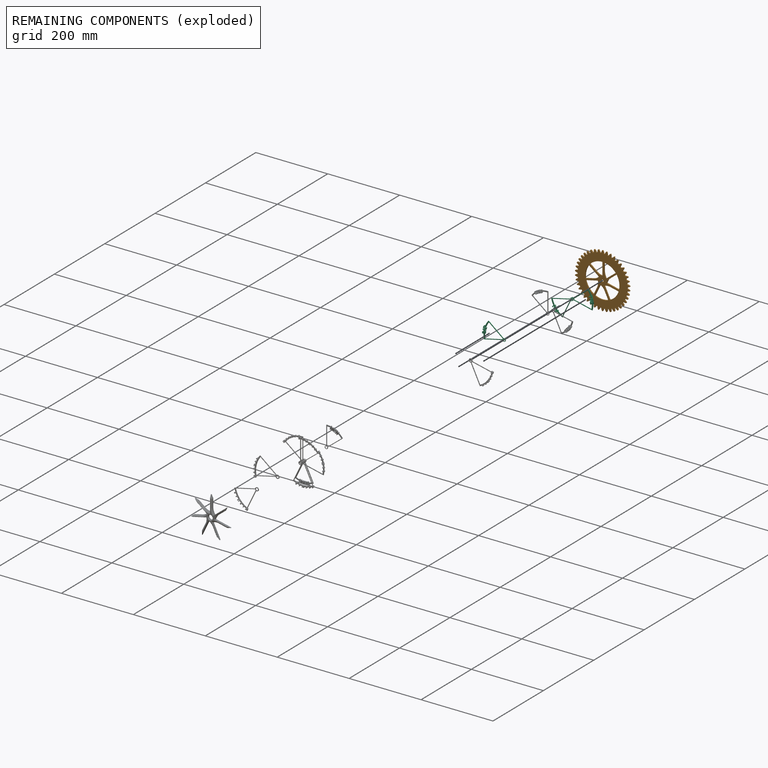
[diagram: remaining components — exploded]
REMAINING COMPONENTS (grouped) — the 4 components below fall outside the per-component tour by the significance rule stated above; both spotlight views highlight the whole group.
  P9: bounding box 61.3 x 48.8 x 4.8 mm, volume 777 mm^3. Recipe-attached (CADFS 00778298; recipe not printed under the significance rule). Held by: PLANAR mate "Planar 25" to P15; PLANAR mate "Planar 26" to P15; CYLINDRICAL mate "Cylindrical 13" to P15.
  P14: bounding box 63.1 x 49.6 x 4.8 mm, volume 762 mm^3. Recipe-attached (CADFS 00778297; recipe not printed under the significance rule). Held by: PLANAR mate "Planar 24" to P15; PLANAR mate "Planar 23" to P15; CYLINDRICAL mate "Cylindrical 12" to P15.
  P15: bounding box 152.4 x 152.0 x 3.2 mm, volume 34793 mm^3. Held by: PLANAR mate "Planar 6" to P8; PLANAR mate "Planar 19" to P7; PLANAR mate "Planar 7" to P4; PLANAR mate "Planar 22" to P5; PLANAR mate "Planar 1" to P0; PLANAR mate "Planar 15" to P13; PLANAR mate "Planar 11" to P2; PLANAR mate "Planar 25" to P9; PLANAR mate "Planar 5" to P8; CYLINDRICAL mate "Cylindrical 3" to P8; CYLINDRICAL mate "Cylindrical 10" to P7; PLANAR mate "Planar 28" to P11; PLANAR mate "Planar 29" to P3; PLANAR mate "Planar 10" to P6; PLANAR mate "Planar 16" to P13; CYLINDRICAL mate "Cylindrical 11" to P5; PLANAR mate "Planar 17" to P12; PLANAR mate "Planar 26" to P9; CYLINDRICAL mate "Cylindrical 14" to P11; PLANAR mate "Planar 2" to P0; PLANAR mate "Planar 13" to P10; PLANAR mate "Planar 14" to P10; PLANAR mate "Planar 24" to P14; PLANAR mate "Planar 27" to P11; PLANAR mate "Planar 30" to P3; PLANAR mate "Planar 12" to P2; PLANAR mate "Planar 21" to P5; CYLINDRICAL mate "Cylindrical 6" to P2; CYLINDRICAL mate "Cylindrical 5" to P6; PLANAR mate "Planar 18" to P12; PLANAR mate "Planar 3" to P1; CYLINDRICAL mate "Cylindrical 7" to P10; CYLINDRICAL mate "Cylindrical 1" to P0; CYLINDRICAL mate "Cylindrical 9" to P12; PLANAR mate "Planar 31" to P3; CYLINDRICAL mate "Cylindrical 2" to P1; CYLINDRICAL mate "Cylindrical 4" to P4; PLANAR mate "Planar 4" to P1; PLANAR mate "Planar 20" to P7; PLANAR mate "Planar 23" to P14; CYLINDRICAL mate "Cylindrical 12" to P14; CYLINDRICAL mate "Cylindrical 8" to P13; PLANAR mate "Planar 9" to P6; CYLINDRICAL mate "Cylindrical 13" to P9; PLANAR mate "Planar 8" to P4.
  P12: bounding box 59.8 x 56.3 x 4.8 mm, volume 805 mm^3. Recipe-attached (CADFS 00778295; recipe not printed under the significance rule). Held by: PLANAR mate "Planar 17" to P15; PLANAR mate "Planar 18" to P15; CYLINDRICAL mate "Cylindrical 9" to P15.
PROVENANCE & LICENSES
Assembly (occurrences, transforms, mates, per-part STEP geometry): AutoMate dataset, Zenodo record 7776208, CC0.
Construction recipes: CADFS (HuggingFace VladPyatov/CADFS, CC-BY-4.0, layered over the ABC dataset), FeatureScript reconstruction programs keyed by ABC model id.
Join: ABC meta listings map ABC model id -> Onshape documentId; within a shared document, parts are matched by geometric signature (bounding-box dims + volume at 0.1% relative tolerance, exact B-rep face/solid counts).
Verification: 15 of this assembly's 16 components carry a recipe attachment, and every attachment is mesh-verified: the CADFS STEP and the AutoMate member STEP were compared as meshes in their shared local frame (symmetric sampled-point-to-mesh distance); worst across the 15 attachments: below the mesh-comparison resolution (tessellation chordal tolerance ~0.234 mm) on a 156 mm part.
Renders: orthographic iso camera (az 35 / el 25); the floor grid conveys scale (grid pitch printed in each image; no ruler). In the exploded view each component is displaced by its stored offset vector: the offsets alone carry the explosion direction (mate normal/axis signs are not orientation cues and do not encode it), and separation distances are assigned per mate-chain, not proportionally to assembly-order depth.
